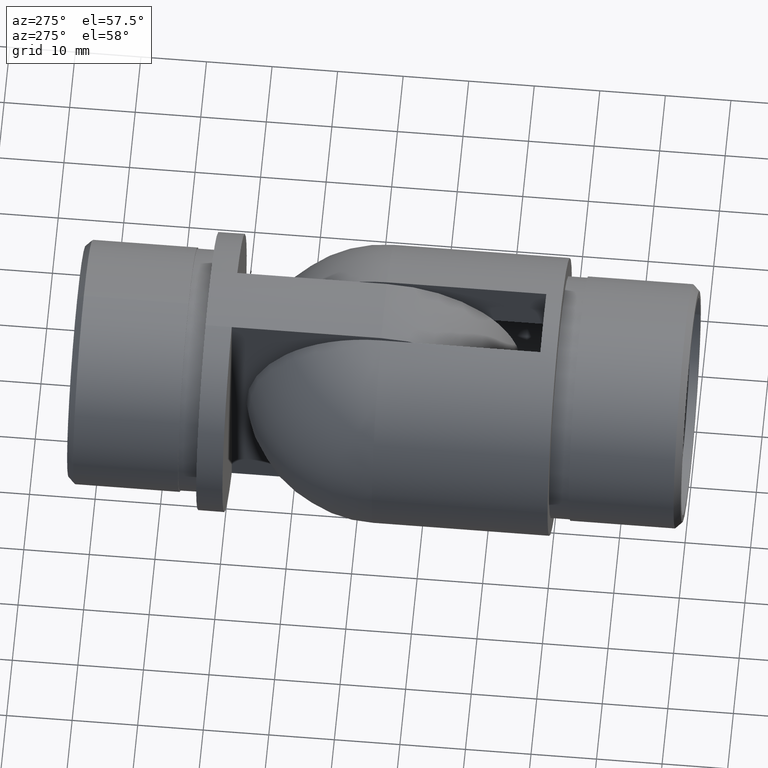
[diagram: clean part render]
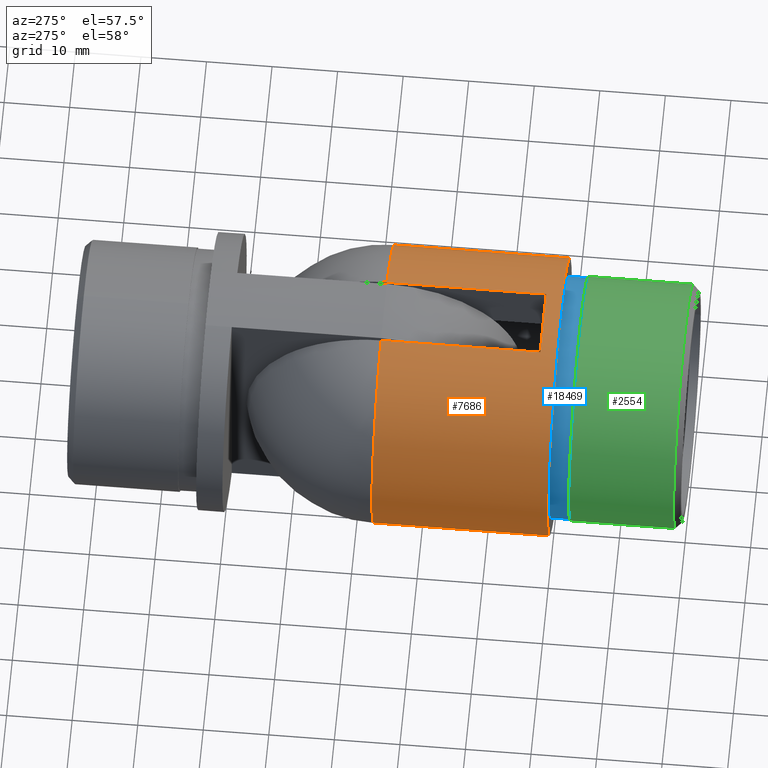
[diagram: same view with three faces highlighted in distinct colors, each labeled with its STEP entity id]
A machine part, auxiliary view with three faces highlighted in distinct colors.
Their STEP definitions:

[orange] entity #7686 — the highlighted cylindrical surface (bore or boss wall) has radius 21.2 mm, axis along (0, -1, 0).
#255 = DIRECTION ( 'NONE',  ( 1.000000000000000000, 0.0000000000000000000, 0.0000000000000000000 ) ) ;
#303 = CARTESIAN_POINT ( 'NONE',  ( -5.249999999999995600, 2.500000000000000900, -20.53965676441551100 ) ) ;
#501 = VERTEX_POINT ( 'NONE', #1669 ) ;
#1022 = CARTESIAN_POINT ( 'NONE',  ( 20.59615867333463900, 20.25396323857702200, -5.028346798361462300 ) ) ;
#1089 = AXIS2_PLACEMENT_3D ( 'NONE', #6564, #11165, #3520 ) ;
#1091 = DIRECTION ( 'NONE',  ( 6.837611295239389200E-017, -1.000000000000000000, -0.0000000000000000000 ) ) ;
#1094 = CARTESIAN_POINT ( 'NONE',  ( 19.52888885728011900, 26.80000000000000400, 8.250000000000003600 ) ) ;
#1167 = CARTESIAN_POINT ( 'NONE',  ( 20.99753037849307100, 19.08455554526353700, 2.933678434760251400 ) ) ;
#1223 = DIRECTION ( 'NONE',  ( 1.000000000000000000, 0.0000000000000000000, 0.0000000000000000000 ) ) ;
#1236 = CARTESIAN_POINT ( 'NONE',  ( 20.01253373008952300, 22.42154467634897600, -6.997386907337704200 ) ) ;
#1288 = FACE_OUTER_BOUND ( 'NONE', #6647, .T. ) ;
#1298 = CARTESIAN_POINT ( 'NONE',  ( 20.27316576508428300, 21.35355934539015600, 6.202466219610845300 ) ) ;
#1669 = CARTESIAN_POINT ( 'NONE',  ( 19.52888885728011900, 26.80000000000000400, 8.250000000000003600 ) ) ;
#1708 = B_SPLINE_CURVE_WITH_KNOTS ( 'NONE', 3,
 ( #1094, #2891, #15331, #12339, #4412, #9118, #17010, #8971, #10619, #8903, #15475, #1298, #2616, #5876, #15543, #17074, #7392, #1167, #20224, #2685, #4471, #10486, #13798, #5943, #20290, #13938, #7600, #4343, #18494, #12278, #10746, #9181, #1022, #16941, #12079, #13656, #7528, #1236, #15271, #5806, #16869, #4270, #7466, #20088, #20157, #18636, #10557, #18565 ),
 .UNSPECIFIED., .F., .F.,
 ( 4, 2, 2, 2, 2, 2, 2, 2, 2, 2, 2, 2, 2, 2, 2, 2, 2, 2, 2, 2, 2, 2, 2, 4 ),
 ( 0.0000000000000000000, 0.001627534562146831000, 0.002441301843220241800, 0.003255069124293652800, 0.004882603686440474900, 0.005696370967513892000, 0.006510138248587307400, 0.008137672810734150300, 0.009765207372880991400, 0.01057897465395441300, 0.01139274193502783300, 0.01302027649717467400, 0.01383404377824809500, 0.01464781105932151800, 0.01627534562146836000, 0.01790288018361520200, 0.01871664746468862000, 0.01953041474576203800, 0.02115794930790888500, 0.02197171658898230300, 0.02278548387005572100, 0.02441301843220254300, 0.02522678571327595000, 0.02604055299434935400 ),
 .UNSPECIFIED. ) ;
#2080 = VERTEX_POINT ( 'NONE', #9022 ) ;
#2090 = DIRECTION ( 'NONE',  ( 6.837611295239389200E-017, -1.000000000000000000, -0.0000000000000000000 ) ) ;
#2455 = CARTESIAN_POINT ( 'NONE',  ( 21.19999999999999900, -3.612708057484694600E-016, 0.0000000000000000000 ) ) ;
#2534 = CIRCLE ( 'NONE', #9689, 21.19999999999999900 ) ;
#2616 = CARTESIAN_POINT ( 'NONE',  ( 20.32728573814139100, 21.15610283693078100, 6.023267399249447400 ) ) ;
#2685 = CARTESIAN_POINT ( 'NONE',  ( 21.09122638265026900, 18.83333241509187100, 2.160675098070035500 ) ) ;
#2752 = CARTESIAN_POINT ( 'NONE',  ( 5.250000000000005300, 2.499999999999998700, 20.53965676441551100 ) ) ;
#2891 = CARTESIAN_POINT ( 'NONE',  ( 19.52888885728011600, 26.24919490253268600, 8.250000000000007100 ) ) ;
#3082 = CIRCLE ( 'NONE', #20305, 21.19999999999999600 ) ;
#3377 = VECTOR ( 'NONE', #17519, 1000.000000000000000 ) ;
#3482 = EDGE_CURVE ( 'NONE', #14729, #8674, #3082, .T. ) ;
#3485 = ORIENTED_EDGE ( 'NONE', *, *, #3482, .F. ) ;
#3520 = DIRECTION ( 'NONE',  ( 1.000000000000000000, 6.837611295239389200E-017, 0.0000000000000000000 ) ) ;
#3700 = CARTESIAN_POINT ( 'NONE',  ( -5.249999999999995600, 2.500000000000000900, 20.53965676441551100 ) ) ;
#3709 = CARTESIAN_POINT ( 'NONE',  ( 5.250000000000005300, 2.499999999999998700, -20.53965676441551100 ) ) ;
#3815 = LINE ( 'NONE', #5197, #17167 ) ;
#4114 = VECTOR ( 'NONE', #2090, 1000.000000000000000 ) ;
#4212 = VERTEX_POINT ( 'NONE', #19792 ) ;
#4270 = CARTESIAN_POINT ( 'NONE',  ( 19.70664357105009000, 24.11429234633923000, -7.819035644867798700 ) ) ;
#4343 = CARTESIAN_POINT ( 'NONE',  ( 21.09745605542135400, 18.81659206776067700, -2.149782139094921000 ) ) ;
#4412 = CARTESIAN_POINT ( 'NONE',  ( 19.64517656579535700, 24.65006197968018900, 7.969591014790497100 ) ) ;
#4471 = CARTESIAN_POINT ( 'NONE',  ( 21.11694561521077800, 18.76567666383996200, 1.893736985380490800 ) ) ;
#4820 = LINE ( 'NONE', #8519, #4114 ) ;
#5197 = CARTESIAN_POINT ( 'NONE',  ( -5.249999999999995600, -6.830473686658673000E-016, -20.53965676441551100 ) ) ;
#5242 = CARTESIAN_POINT ( 'NONE',  ( 1.238185012568044800E-031, -1.810844400339220100E-015, 0.0000000000000000000 ) ) ;
#5274 = ORIENTED_EDGE ( 'NONE', *, *, #9089, .T. ) ;
#5395 = CARTESIAN_POINT ( 'NONE',  ( -1.709402823809847200E-016, 2.500000000000000000, 0.0000000000000000000 ) ) ;
#5746 = ORIENTED_EDGE ( 'NONE', *, *, #6822, .F. ) ;
#5806 = CARTESIAN_POINT ( 'NONE',  ( 19.86952944149270600, 23.12917034854743600, -7.393261444956631400 ) ) ;
#5858 = EDGE_CURVE ( 'NONE', #8674, #4212, #3815, .T. ) ;
#5873 = CARTESIAN_POINT ( 'NONE',  ( 5.250000000000005300, 6.830473686658685800E-016, -20.53965676441551100 ) ) ;
#5876 = CARTESIAN_POINT ( 'NONE',  ( 20.48887439059558000, 20.59140977172586400, 5.458865154775916800 ) ) ;
#5943 = CARTESIAN_POINT ( 'NONE',  ( 21.20012527474675300, 18.54967808166271200, -0.2621935477816822500 ) ) ;
#6000 = CYLINDRICAL_SURFACE ( 'NONE', #1089, 21.19999999999999600 ) ;
#6087 = ORIENTED_EDGE ( 'NONE', *, *, #13951, .F. ) ;
#6564 = CARTESIAN_POINT ( 'NONE',  ( 0.0000000000000000000, 0.0000000000000000000, 0.0000000000000000000 ) ) ;
#6647 = EDGE_LOOP ( 'NONE', ( #5746 ) ) ;
#6786 = ORIENTED_EDGE ( 'NONE', *, *, #10607, .T. ) ;
#6822 = EDGE_CURVE ( 'NONE', #17702, #17702, #2534, .T. ) ;
#7392 = CARTESIAN_POINT ( 'NONE',  ( 20.88475693595552600, 19.39508427951553000, 3.676674087177919300 ) ) ;
#7466 = CARTESIAN_POINT ( 'NONE',  ( 19.64193688291723900, 24.62895070445216600, -7.977973454131766400 ) ) ;
#7528 = CARTESIAN_POINT ( 'NONE',  ( 20.16553893495708400, 21.75431675288486500, -6.549103662222624900 ) ) ;
#7600 = CARTESIAN_POINT ( 'NONE',  ( 21.15849631988322700, 18.65709639814895500, -1.352437538479934300 ) ) ;
#7686 = ADVANCED_FACE ( 'NONE', ( #17131, #1288 ), #6000, .T. ) ;
#8117 = ORIENTED_EDGE ( 'NONE', *, *, #10337, .F. ) ;
#8433 = CIRCLE ( 'NONE', #19311, 21.19999999999999600 ) ;
#8519 = CARTESIAN_POINT ( 'NONE',  ( -5.249999999999995600, -6.830473686658673000E-016, 20.53965676441551100 ) ) ;
#8608 = EDGE_CURVE ( 'NONE', #19371, #20392, #15368, .T. ) ;
#8674 = VERTEX_POINT ( 'NONE', #303 ) ;
#8805 = LINE ( 'NONE', #19068, #3377 ) ;
#8903 = CARTESIAN_POINT ( 'NONE',  ( 20.11255397933488000, 21.98497431148832200, 6.704484393133963500 ) ) ;
#8971 = CARTESIAN_POINT ( 'NONE',  ( 19.86549537052957600, 23.12551023275266400, 7.406188432139717100 ) ) ;
#9000 = ORIENTED_EDGE ( 'NONE', *, *, #15116, .F. ) ;
#9022 = CARTESIAN_POINT ( 'NONE',  ( 5.250000000000001800, 26.80000000000000100, 20.53965676441551100 ) ) ;
#9089 = EDGE_CURVE ( 'NONE', #501, #2080, #8433, .T. ) ;
#9105 = CARTESIAN_POINT ( 'NONE',  ( -1.832479827124156500E-015, 26.80000000000000100, 0.0000000000000000000 ) ) ;
#9118 = CARTESIAN_POINT ( 'NONE',  ( 19.70896149919679300, 24.12933817813575400, 7.810517259918375600 ) ) ;
#9181 = CARTESIAN_POINT ( 'NONE',  ( 20.64761604697038800, 20.09431074088749000, -4.813289260449787200 ) ) ;
#9233 = CARTESIAN_POINT ( 'NONE',  ( -1.709402823809847200E-016, 2.500000000000000000, 0.0000000000000000000 ) ) ;
#9375 = VERTEX_POINT ( 'NONE', #10731 ) ;
#9575 = CARTESIAN_POINT ( 'NONE',  ( 19.52888885728011900, 26.80000000000000400, -8.250000000000003600 ) ) ;
#9689 = AXIS2_PLACEMENT_3D ( 'NONE', #5242, #9884, #12907 ) ;
#9726 = DIRECTION ( 'NONE',  ( 6.837611295239389200E-017, -1.000000000000000000, -0.0000000000000000000 ) ) ;
#9746 = EDGE_LOOP ( 'NONE', ( #8117, #5274, #6087, #12531, #9000, #6786, #18477, #3485, #14721, #13469 ) ) ;
#9830 = VERTEX_POINT ( 'NONE', #9575 ) ;
#9873 = AXIS2_PLACEMENT_3D ( 'NONE', #11227, #9726, #255 ) ;
#9884 = DIRECTION ( 'NONE',  ( 6.837611295239389200E-017, -1.000000000000000000, -0.0000000000000000000 ) ) ;
#10045 = AXIS2_PLACEMENT_3D ( 'NONE', #9105, #16725, #1223 ) ;
#10337 = EDGE_CURVE ( 'NONE', #501, #9830, #1708, .T. ) ;
#10486 = CARTESIAN_POINT ( 'NONE',  ( 21.17856188585539100, 18.60464637921042600, 1.093180675490439200 ) ) ;
#10557 = CARTESIAN_POINT ( 'NONE',  ( 19.52888885728011900, 26.52453809431624200, -8.250000000000000000 ) ) ;
#10607 = EDGE_CURVE ( 'NONE', #9375, #4212, #11571, .T. ) ;
#10619 = CARTESIAN_POINT ( 'NONE',  ( 19.95938873929013000, 22.65412517270792800, 7.152800525084056300 ) ) ;
#10731 = CARTESIAN_POINT ( 'NONE',  ( -5.249999999999996400, 26.80000000000000100, 20.53965676441551500 ) ) ;
#10746 = CARTESIAN_POINT ( 'NONE',  ( 20.79548403585618400, 19.64782995502631000, -4.146691624166547500 ) ) ;
#11165 = DIRECTION ( 'NONE',  ( 6.837611295239389200E-017, -1.000000000000000000, -0.0000000000000000000 ) ) ;
#11227 = CARTESIAN_POINT ( 'NONE',  ( -1.832479827124156500E-015, 26.80000000000000100, 0.0000000000000000000 ) ) ;
#11539 = DIRECTION ( 'NONE',  ( 1.000000000000000000, -2.045664476387744500E-016, 0.0000000000000000000 ) ) ;
#11571 = CIRCLE ( 'NONE', #9873, 21.19999999999999600 ) ;
#12079 = CARTESIAN_POINT ( 'NONE',  ( 20.43582040085573900, 20.77687645385850200, -5.644100342962176800 ) ) ;
#12278 = CARTESIAN_POINT ( 'NONE',  ( 20.88546439064928300, 19.39302912338451200, -3.673753017804800300 ) ) ;
#12339 = CARTESIAN_POINT ( 'NONE',  ( 19.61807164526330600, 24.91290217732305800, 8.035830780628682400 ) ) ;
#12531 = ORIENTED_EDGE ( 'NONE', *, *, #8608, .F. ) ;
#12907 = DIRECTION ( 'NONE',  ( 1.000000000000000000, 6.837611295239389200E-017, 0.0000000000000000000 ) ) ;
#13394 = AXIS2_PLACEMENT_3D ( 'NONE', #9233, #15794, #13991 ) ;
#13469 = ORIENTED_EDGE ( 'NONE', *, *, #17815, .T. ) ;
#13656 = CARTESIAN_POINT ( 'NONE',  ( 20.27359826025922000, 21.34359700877996600, -6.210934722845198800 ) ) ;
#13798 = CARTESIAN_POINT ( 'NONE',  ( 21.19974245855503300, 18.55066180387651500, 0.5542095061953471500 ) ) ;
#13938 = CARTESIAN_POINT ( 'NONE',  ( 21.17407782886826700, 18.61680449465214000, -1.083095233639173500 ) ) ;
#13951 = EDGE_CURVE ( 'NONE', #20392, #2080, #8805, .T. ) ;
#13991 = DIRECTION ( 'NONE',  ( 1.000000000000000000, -2.045664476387744500E-016, 1.776356839400250500E-015 ) ) ;
#14253 = LINE ( 'NONE', #5873, #15496 ) ;
#14341 = EDGE_CURVE ( 'NONE', #19626, #14729, #14253, .T. ) ;
#14721 = ORIENTED_EDGE ( 'NONE', *, *, #14341, .F. ) ;
#14729 = VERTEX_POINT ( 'NONE', #3709 ) ;
#15088 = DIRECTION ( 'NONE',  ( -6.837611295239389200E-017, 1.000000000000000000, 0.0000000000000000000 ) ) ;
#15116 = EDGE_CURVE ( 'NONE', #9375, #19371, #4820, .T. ) ;
#15252 = CIRCLE ( 'NONE', #10045, 21.19999999999999600 ) ;
#15271 = CARTESIAN_POINT ( 'NONE',  ( 19.96279421733243000, 22.65392437753495600, -7.137601982197288900 ) ) ;
#15331 = CARTESIAN_POINT ( 'NONE',  ( 19.55220157462567700, 25.70880850925883400, 8.195404763618441300 ) ) ;
#15368 = CIRCLE ( 'NONE', #13394, 21.19999999999999600 ) ;
#15475 = CARTESIAN_POINT ( 'NONE',  ( 20.16589479011517800, 21.76752761044872700, 6.542822377078926400 ) ) ;
#15496 = VECTOR ( 'NONE', #1091, 1000.000000000000000 ) ;
#15543 = CARTESIAN_POINT ( 'NONE',  ( 20.59587053299181400, 20.25071701206385600, 5.045923669225064000 ) ) ;
#15787 = CARTESIAN_POINT ( 'NONE',  ( -1.832479827124156500E-015, 26.80000000000000100, 0.0000000000000000000 ) ) ;
#15794 = DIRECTION ( 'NONE',  ( 2.065146995210484900E-016, 1.000000000000000000, 0.0000000000000000000 ) ) ;
#16725 = DIRECTION ( 'NONE',  ( 6.837611295239389200E-017, -1.000000000000000000, -0.0000000000000000000 ) ) ;
#16869 = CARTESIAN_POINT ( 'NONE',  ( 19.82601233956383200, 23.37174293850827000, -7.508762516186904700 ) ) ;
#16941 = CARTESIAN_POINT ( 'NONE',  ( 20.49018369183857800, 20.59544740452538700, -5.444115712995284200 ) ) ;
#17010 = CARTESIAN_POINT ( 'NONE',  ( 19.74559743585137300, 23.87229009600193300, 7.717756490944959900 ) ) ;
#17055 = DIRECTION ( 'NONE',  ( 1.000000000000000000, 0.0000000000000000000, 0.0000000000000000000 ) ) ;
#17074 = CARTESIAN_POINT ( 'NONE',  ( 20.79519931272447800, 19.64852888558960200, 4.148603889439098900 ) ) ;
#17109 = CARTESIAN_POINT ( 'NONE',  ( 5.250000000000003600, 26.80000000000000100, -20.53965676441551100 ) ) ;
#17131 = FACE_OUTER_BOUND ( 'NONE', #9746, .T. ) ;
#17167 = VECTOR ( 'NONE', #15088, 1000.000000000000000 ) ;
#17519 = DIRECTION ( 'NONE',  ( -6.837611295239389200E-017, 1.000000000000000000, 0.0000000000000000000 ) ) ;
#17702 = VERTEX_POINT ( 'NONE', #2455 ) ;
#17815 = EDGE_CURVE ( 'NONE', #19626, #9830, #15252, .T. ) ;
#18477 = ORIENTED_EDGE ( 'NONE', *, *, #5858, .F. ) ;
#18494 = CARTESIAN_POINT ( 'NONE',  ( 21.03770787017412400, 18.97403378586788100, -2.667195459302253100 ) ) ;
#18565 = CARTESIAN_POINT ( 'NONE',  ( 19.52888885728011900, 26.80000000000000400, -8.250000000000003600 ) ) ;
#18636 = CARTESIAN_POINT ( 'NONE',  ( 19.53471904926210500, 26.25051598634353000, -8.236238732553147200 ) ) ;
#19068 = CARTESIAN_POINT ( 'NONE',  ( 5.250000000000005300, 6.830473686658685800E-016, 20.53965676441551100 ) ) ;
#19311 = AXIS2_PLACEMENT_3D ( 'NONE', #15787, #20535, #17055 ) ;
#19371 = VERTEX_POINT ( 'NONE', #3700 ) ;
#19554 = DIRECTION ( 'NONE',  ( 2.065146995210484900E-016, 1.000000000000000000, 0.0000000000000000000 ) ) ;
#19626 = VERTEX_POINT ( 'NONE', #17109 ) ;
#19792 = CARTESIAN_POINT ( 'NONE',  ( -5.249999999999998200, 26.80000000000000100, -20.53965676441551100 ) ) ;
#20088 = CARTESIAN_POINT ( 'NONE',  ( 19.57485899129942900, 25.43291472027000200, -8.140536328005550700 ) ) ;
#20157 = CARTESIAN_POINT ( 'NONE',  ( 19.55765040324953200, 25.70529746351498800, -8.181637213754099100 ) ) ;
#20224 = CARTESIAN_POINT ( 'NONE',  ( 21.03153090803163700, 18.99274347675746500, 2.680122174105653300 ) ) ;
#20290 = CARTESIAN_POINT ( 'NONE',  ( 21.19495955829759000, 18.56292361006371300, -0.5369883706671277900 ) ) ;
#20305 = AXIS2_PLACEMENT_3D ( 'NONE', #5395, #19554, #11539 ) ;
#20392 = VERTEX_POINT ( 'NONE', #2752 ) ;
#20535 = DIRECTION ( 'NONE',  ( 6.837611295239389200E-017, -1.000000000000000000, -0.0000000000000000000 ) ) ;

[blue] entity #18469 — the highlighted cylindrical surface (bore or boss wall) has radius 18.45 mm, axis along (-0, 1, 0).
#391 = CARTESIAN_POINT ( 'NONE',  ( 18.45000000000000300, -2.999999999999998700, 0.0000000000000000000 ) ) ;
#1146 = CYLINDRICAL_SURFACE ( 'NONE', #17497, 18.45000000000000300 ) ;
#3286 = ORIENTED_EDGE ( 'NONE', *, *, #11183, .T. ) ;
#3366 = EDGE_CURVE ( 'NONE', #10935, #10935, #10968, .T. ) ;
#6274 = DIRECTION ( 'NONE',  ( 1.000000000000000000, 6.794605754846613000E-017, 0.0000000000000000000 ) ) ;
#6866 = CIRCLE ( 'NONE', #18127, 18.45000000000000300 ) ;
#7241 = ORIENTED_EDGE ( 'NONE', *, *, #3366, .F. ) ;
#7336 = CARTESIAN_POINT ( 'NONE',  ( 2.038381726453983900E-016, -3.000000000000000000, 0.0000000000000000000 ) ) ;
#7997 = VERTEX_POINT ( 'NONE', #11786 ) ;
#8852 = DIRECTION ( 'NONE',  ( -1.000000000000000000, -7.051721447060189900E-017, 0.0000000000000000000 ) ) ;
#10935 = VERTEX_POINT ( 'NONE', #391 ) ;
#10968 = CIRCLE ( 'NONE', #13486, 18.45000000000000300 ) ;
#11154 = CARTESIAN_POINT ( 'NONE',  ( 0.0000000000000000000, 0.0000000000000000000, 0.0000000000000000000 ) ) ;
#11183 = EDGE_CURVE ( 'NONE', #7997, #7997, #6866, .T. ) ;
#11326 = EDGE_LOOP ( 'NONE', ( #3286 ) ) ;
#11786 = CARTESIAN_POINT ( 'NONE',  ( 18.45000000000000300, 1.253604761769200300E-015, 0.0000000000000000000 ) ) ;
#12473 = DIRECTION ( 'NONE',  ( 6.794605754846613000E-017, -1.000000000000000000, 0.0000000000000000000 ) ) ;
#12995 = FACE_OUTER_BOUND ( 'NONE', #18687, .T. ) ;
#13249 = FACE_OUTER_BOUND ( 'NONE', #11326, .T. ) ;
#13486 = AXIS2_PLACEMENT_3D ( 'NONE', #17313, #15773, #15701 ) ;
#15701 = DIRECTION ( 'NONE',  ( 1.000000000000000000, 7.051721447060189900E-017, 0.0000000000000000000 ) ) ;
#15773 = DIRECTION ( 'NONE',  ( 6.794605754846613000E-017, -1.000000000000000000, 0.0000000000000000000 ) ) ;
#17313 = CARTESIAN_POINT ( 'NONE',  ( 2.038381726453983900E-016, -3.000000000000000000, 0.0000000000000000000 ) ) ;
#17497 = AXIS2_PLACEMENT_3D ( 'NONE', #7336, #18356, #8852 ) ;
#18127 = AXIS2_PLACEMENT_3D ( 'NONE', #11154, #12473, #6274 ) ;
#18356 = DIRECTION ( 'NONE',  ( -6.794605754846613000E-017, 1.000000000000000000, -0.0000000000000000000 ) ) ;
#18469 = ADVANCED_FACE ( 'NONE', ( #12995, #13249 ), #1146, .T. ) ;
#18687 = EDGE_LOOP ( 'NONE', ( #7241 ) ) ;

[green] entity #2554 — the highlighted cylindrical surface (bore or boss wall) has radius 18.65 mm, axis along (-0, 1, 0).
#356 = DIRECTION ( 'NONE',  ( 1.000000000000000000, 0.0000000000000000000, 0.0000000000000000000 ) ) ;
#1131 = CYLINDRICAL_SURFACE ( 'NONE', #10312, 18.65000000000000200 ) ;
#1307 = CIRCLE ( 'NONE', #17822, 18.65000000000000200 ) ;
#1338 = VERTEX_POINT ( 'NONE', #1988 ) ;
#1519 = DIRECTION ( 'NONE',  ( 1.000000000000000000, 6.976099769343727700E-017, 0.0000000000000000000 ) ) ;
#1886 = CARTESIAN_POINT ( 'NONE',  ( 1.358921150969322700E-015, -20.00000000000000000, 0.0000000000000000000 ) ) ;
#1923 = CARTESIAN_POINT ( 'NONE',  ( 18.65000000000000200, -2.999999999999998700, 0.0000000000000000000 ) ) ;
#1988 = CARTESIAN_POINT ( 'NONE',  ( 18.65000000000000200, -19.00000000000001800, 0.0000000000000000000 ) ) ;
#2554 = ADVANCED_FACE ( 'NONE', ( #5326, #3352 ), #1131, .T. ) ;
#3254 = CARTESIAN_POINT ( 'NONE',  ( 2.038381726453983900E-016, -3.000000000000000000, 0.0000000000000000000 ) ) ;
#3352 = FACE_OUTER_BOUND ( 'NONE', #5009, .T. ) ;
#4242 = AXIS2_PLACEMENT_3D ( 'NONE', #4905, #19141, #356 ) ;
#4421 = EDGE_CURVE ( 'NONE', #1338, #1338, #16433, .T. ) ;
#4905 = CARTESIAN_POINT ( 'NONE',  ( 1.290975093420857700E-015, -19.00000000000001800, 0.0000000000000000000 ) ) ;
#5009 = EDGE_LOOP ( 'NONE', ( #18075 ) ) ;
#5326 = FACE_OUTER_BOUND ( 'NONE', #12635, .T. ) ;
#6536 = VERTEX_POINT ( 'NONE', #1923 ) ;
#6637 = EDGE_CURVE ( 'NONE', #6536, #6536, #1307, .T. ) ;
#10312 = AXIS2_PLACEMENT_3D ( 'NONE', #1886, #12843, #11395 ) ;
#10656 = ORIENTED_EDGE ( 'NONE', *, *, #4421, .T. ) ;
#11178 = DIRECTION ( 'NONE',  ( 6.794605754846613000E-017, -1.000000000000000000, 0.0000000000000000000 ) ) ;
#11395 = DIRECTION ( 'NONE',  ( -1.000000000000000000, 0.0000000000000000000, 0.0000000000000000000 ) ) ;
#12635 = EDGE_LOOP ( 'NONE', ( #10656 ) ) ;
#12843 = DIRECTION ( 'NONE',  ( -6.794605754846613000E-017, 1.000000000000000000, -0.0000000000000000000 ) ) ;
#16433 = CIRCLE ( 'NONE', #4242, 18.65000000000000200 ) ;
#17822 = AXIS2_PLACEMENT_3D ( 'NONE', #3254, #11178, #1519 ) ;
#18075 = ORIENTED_EDGE ( 'NONE', *, *, #6637, .T. ) ;
#19141 = DIRECTION ( 'NONE',  ( -6.794605754846622800E-017, 1.000000000000000000, 0.0000000000000000000 ) ) ;